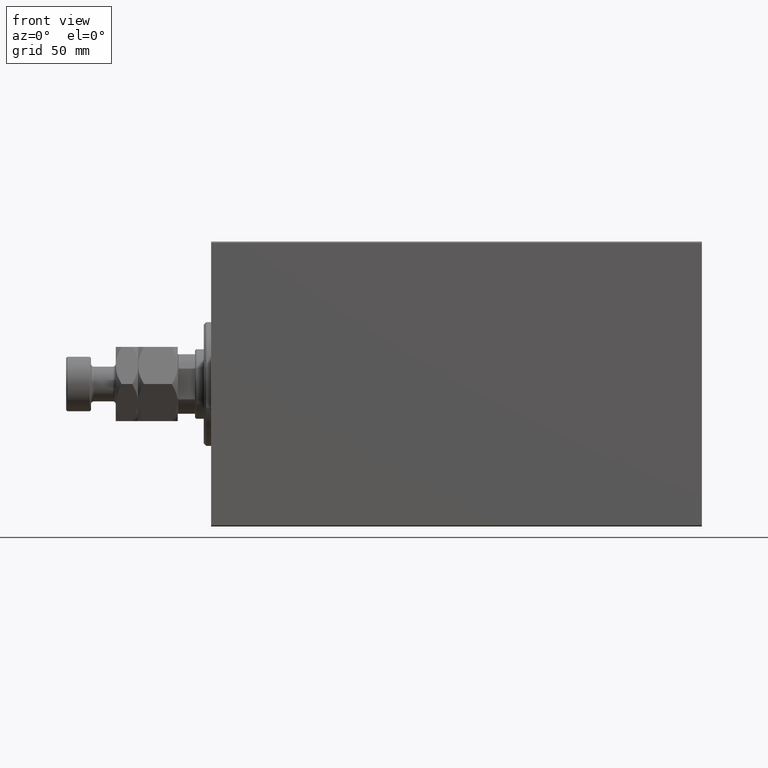
[diagram: clean part render]
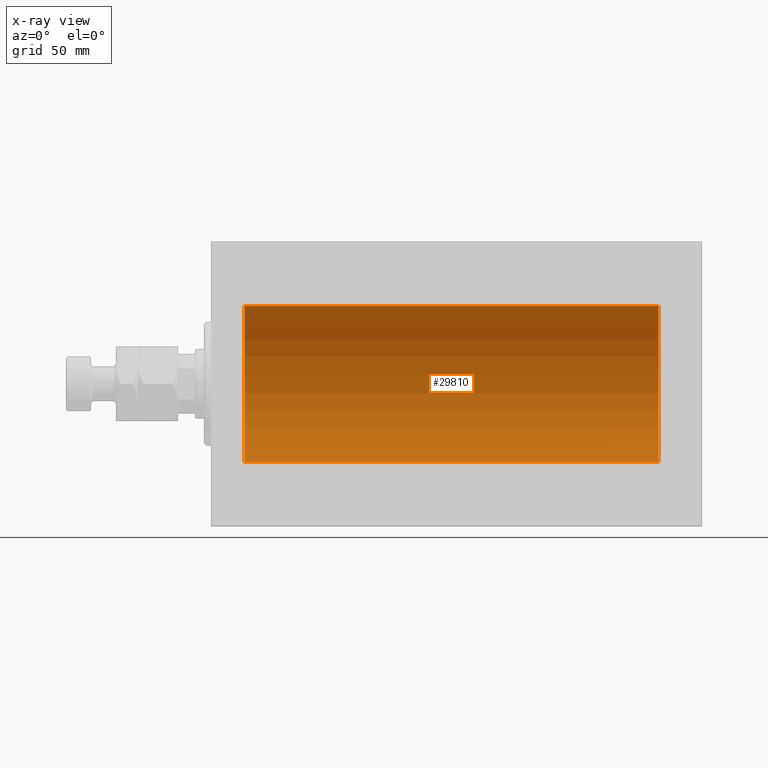
[diagram: x-ray — body ghosted, one internal face saturated and labeled with its STEP entity id]
A machine part, front view, then the same camera in x-ray: the body is ghosted and one INTERNAL B-rep face — a face not visible from any outside direction — is saturated and labeled: STEP entity #29810.
In plain terms, the highlighted cylindrical surface (partial cylindrical patch) has radius 31.5 mm, axis along (-1, -0, -0).
Its self-contained STEP definition (entity closure, byte-faithful):
#1171 = DIRECTION ( 'NONE',  ( -1.000000000000000000, -0.000000000000000000, -0.000000000000000000 ) ) ;
#1749 = CARTESIAN_POINT ( 'NONE',  ( 13.50000000000001243, 0.000000000000000000, 0.000000000000000000 ) ) ;
#1858 = DIRECTION ( 'NONE',  ( -1.000000000000000000, -0.000000000000000000, -0.000000000000000000 ) ) ;
#2867 = EDGE_LOOP ( 'NONE', ( #31493, #28133, #45233, #3241 ) ) ;
#2872 = AXIS2_PLACEMENT_3D ( 'NONE', #7516, #17426, #21115 ) ;
#3241 = ORIENTED_EDGE ( 'NONE', *, *, #10686, .T. ) ;
#3255 = CIRCLE ( 'NONE', #6941, 31.50000000000000000 ) ;
#6941 = AXIS2_PLACEMENT_3D ( 'NONE', #1749, #23380, #30261 ) ;
#7516 = CARTESIAN_POINT ( 'NONE',  ( 180.5000000000000000, 0.000000000000000000, 0.000000000000000000 ) ) ;
#9159 = EDGE_CURVE ( 'NONE', #45190, #17797, #30840, .T. ) ;
#9439 = CARTESIAN_POINT ( 'NONE',  ( 180.5000000000000000, 0.000000000000000000, 31.50000000000000000 ) ) ;
#9545 = CARTESIAN_POINT ( 'NONE',  ( 180.5000000000000000, 0.000000000000000000, 0.000000000000000000 ) ) ;
#9999 = DIRECTION ( 'NONE',  ( 0.000000000000000000, 0.000000000000000000, 1.000000000000000000 ) ) ;
#10686 = EDGE_CURVE ( 'NONE', #17797, #11628, #3255, .T. ) ;
#11628 = VERTEX_POINT ( 'NONE', #35328 ) ;
#13242 = AXIS2_PLACEMENT_3D ( 'NONE', #9545, #19682, #9999 ) ;
#15676 = EDGE_CURVE ( 'NONE', #20850, #11628, #22113, .T. ) ;
#17426 = DIRECTION ( 'NONE',  ( -1.000000000000000000, 0.000000000000000000, 0.000000000000000000 ) ) ;
#17797 = VERTEX_POINT ( 'NONE', #43518 ) ;
#19048 = CARTESIAN_POINT ( 'NONE',  ( 180.5000000000000000, 3.857637417314162689E-15, -31.50000000000000000 ) ) ;
#19682 = DIRECTION ( 'NONE',  ( -1.000000000000000000, -0.000000000000000000, -0.000000000000000000 ) ) ;
#20850 = VERTEX_POINT ( 'NONE', #19048 ) ;
#21115 = DIRECTION ( 'NONE',  ( 0.000000000000000000, 0.000000000000000000, 1.000000000000000000 ) ) ;
#21853 = CARTESIAN_POINT ( 'NONE',  ( 180.5000000000000000, 0.000000000000000000, 31.50000000000000000 ) ) ;
#22113 = LINE ( 'NONE', #25090, #23243 ) ;
#23243 = VECTOR ( 'NONE', #1171, 1000.000000000000000 ) ;
#23380 = DIRECTION ( 'NONE',  ( -1.000000000000000000, 0.000000000000000000, 0.000000000000000000 ) ) ;
#25090 = CARTESIAN_POINT ( 'NONE',  ( 180.5000000000000000, 3.857637417314162689E-15, -31.50000000000000000 ) ) ;
#27515 = EDGE_CURVE ( 'NONE', #45190, #20850, #36663, .T. ) ;
#28133 = ORIENTED_EDGE ( 'NONE', *, *, #27515, .F. ) ;
#29810 = ADVANCED_FACE ( 'NONE', ( #44753 ), #37846, .F. ) ;
#30261 = DIRECTION ( 'NONE',  ( 0.000000000000000000, 0.000000000000000000, 1.000000000000000000 ) ) ;
#30840 = LINE ( 'NONE', #9439, #32703 ) ;
#31493 = ORIENTED_EDGE ( 'NONE', *, *, #15676, .F. ) ;
#32703 = VECTOR ( 'NONE', #1858, 1000.000000000000000 ) ;
#35328 = CARTESIAN_POINT ( 'NONE',  ( 13.50000000000001243, 3.857637417314162689E-15, -31.50000000000000000 ) ) ;
#36663 = CIRCLE ( 'NONE', #2872, 31.50000000000000000 ) ;
#37846 = CYLINDRICAL_SURFACE ( 'NONE', #13242, 31.50000000000000000 ) ;
#43518 = CARTESIAN_POINT ( 'NONE',  ( 13.50000000000001243, 0.000000000000000000, 31.50000000000000000 ) ) ;
#44753 = FACE_OUTER_BOUND ( 'NONE', #2867, .T. ) ;
#45190 = VERTEX_POINT ( 'NONE', #21853 ) ;
#45233 = ORIENTED_EDGE ( 'NONE', *, *, #9159, .T. ) ;